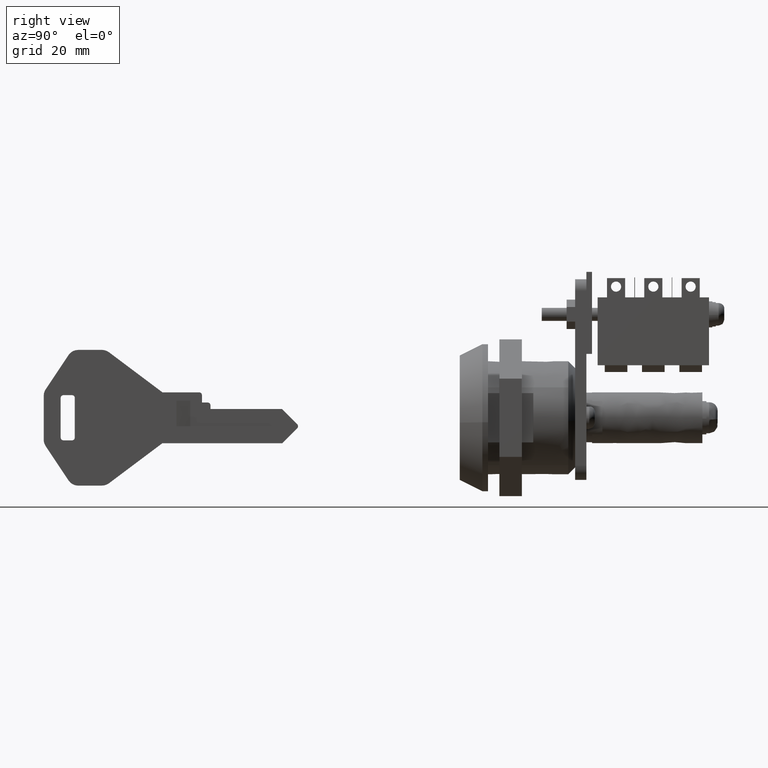
[diagram: clean part render]
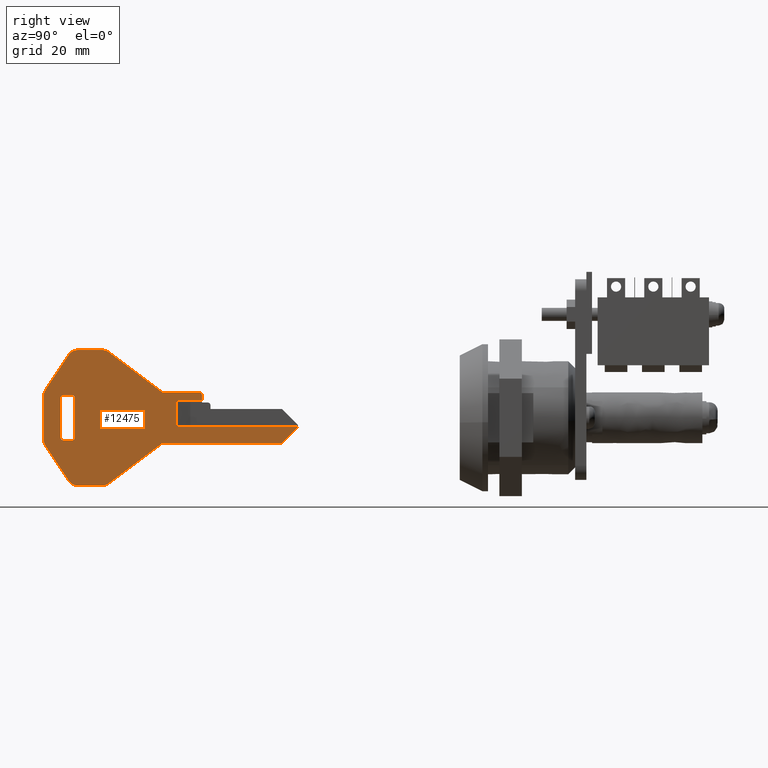
[diagram: same view with one face highlighted and labeled with its STEP entity id]
A machine part, right view. The second image highlights one B-rep face of the part: STEP entity #12475.
In plain terms, the highlighted face is a freeform B-spline surface patch.
Its self-contained STEP definition (entity closure, byte-faithful):
#10869=CARTESIAN_POINT('',(-50.107604999999893,-0.900000000000000,-1.500000000000115));
#10870=VERTEX_POINT('',#10869);
#10891=CARTESIAN_POINT('',(-50.107604999999893,-0.900000000000012,3.0));
#10892=VERTEX_POINT('',#10891);
#10906=CARTESIAN_POINT('',(-50.107604999999893,-0.900000000000000,-1.500000000000115));
#10907=CARTESIAN_POINT('',(-50.107604999999893,-0.900000000000012,3.0));
#10908=QUASI_UNIFORM_CURVE('',1,(#10906,#10907),.UNSPECIFIED.,.F.,.U.);
#10909=EDGE_CURVE('',#10870,#10892,#10908,.T.);
#10980=CARTESIAN_POINT('',(-70.107602999999898,-0.900000000000012,4.0));
#10981=VERTEX_POINT('',#10980);
#10996=CARTESIAN_POINT('',(-68.607603026179802,-0.900000000000000,4.0));
#10997=VERTEX_POINT('',#10996);
#11003=CARTESIAN_POINT('',(-70.107602999999898,-0.900000000000012,4.0));
#11004=CARTESIAN_POINT('',(-68.607603026179802,-0.900000000000000,4.0));
#11005=QUASI_UNIFORM_CURVE('',1,(#11003,#11004),.UNSPECIFIED.,.F.,.U.);
#11006=EDGE_CURVE('',#10981,#10997,#11005,.T.);
#11043=CARTESIAN_POINT('',(-68.107602999999898,-0.900000000000012,3.500000000000000));
#11044=VERTEX_POINT('',#11043);
#11050=CARTESIAN_POINT('',(-68.607603026179802,-0.900000000000012,3.999999999999999));
#11051=CARTESIAN_POINT('',(-68.400496237325342,-0.900000000000012,4.000000010844071));
#11052=CARTESIAN_POINT('',(-68.254049618662620,-0.900000000000012,3.853553399849268));
#11053=CARTESIAN_POINT('',(-68.107602999999898,-0.900000000000012,3.707106788854465));
#11054=CARTESIAN_POINT('',(-68.107602999999898,-0.900000000000012,3.500000000000000));
#11062=(BOUNDED_CURVE()B_SPLINE_CURVE(2,(#11050,#11051,#11052,#11053,#11054),.UNSPECIFIED.,.F.,.U.)B_SPLINE_CURVE_WITH_KNOTS((3,2,3),(0.0,0.500000000000000,1.0),.UNSPECIFIED.)CURVE()GEOMETRIC_REPRESENTATION_ITEM()RATIONAL_B_SPLINE_CURVE((1.0,0.923879527501979,1.0,0.923879527501979,1.0))REPRESENTATION_ITEM(''));
#11063=EDGE_CURVE('',#10997,#11044,#11062,.T.);
#11081=CARTESIAN_POINT('',(-68.107602999999898,-0.900000000000012,-3.500000000000000));
#11082=VERTEX_POINT('',#11081);
#11088=CARTESIAN_POINT('',(-68.107602999999898,-0.900000000000012,3.500000000000000));
#11089=CARTESIAN_POINT('',(-68.107602999999898,-0.900000000000012,-3.500000000000000));
#11090=QUASI_UNIFORM_CURVE('',1,(#11088,#11089),.UNSPECIFIED.,.F.,.U.);
#11091=EDGE_CURVE('',#11044,#11082,#11090,.T.);
#11126=CARTESIAN_POINT('',(-68.607602999999898,-0.900000000000012,-4.000000000000116));
#11127=VERTEX_POINT('',#11126);
#11133=CARTESIAN_POINT('',(-68.107602999999898,-0.900000000000012,-3.500000000000000));
#11134=CARTESIAN_POINT('',(-68.107602999999898,-0.900000000000012,-4.000000000000000));
#11135=CARTESIAN_POINT('',(-68.607602999999898,-0.900000000000012,-4.0));
#11143=(BOUNDED_CURVE()B_SPLINE_CURVE(2,(#11133,#11134,#11135),.UNSPECIFIED.,.F.,.U.)CURVE()GEOMETRIC_REPRESENTATION_ITEM()QUASI_UNIFORM_CURVE()RATIONAL_B_SPLINE_CURVE((1.0,0.707106781186548,1.0))REPRESENTATION_ITEM(''));
#11144=EDGE_CURVE('',#11082,#11127,#11143,.T.);
#11162=CARTESIAN_POINT('',(-70.107602991273296,-0.900000000000012,-4.0));
#11163=VERTEX_POINT('',#11162);
#11169=CARTESIAN_POINT('',(-68.607602999999898,-0.900000000000012,-4.000000000000116));
#11170=CARTESIAN_POINT('',(-70.107602991273296,-0.900000000000012,-4.0));
#11171=QUASI_UNIFORM_CURVE('',1,(#11169,#11170),.UNSPECIFIED.,.F.,.U.);
#11172=EDGE_CURVE('',#11127,#11163,#11171,.T.);
#11209=CARTESIAN_POINT('',(-70.607602999999898,-0.900000000000012,-3.500000000000000));
#11210=VERTEX_POINT('',#11209);
#11216=CARTESIAN_POINT('',(-70.107602991273296,-0.900000000000012,-4.0));
#11217=CARTESIAN_POINT('',(-70.314709775015800,-0.900000000000012,-4.000000003614677));
#11218=CARTESIAN_POINT('',(-70.461156387507842,-0.900000000000012,-3.853553393678594));
#11219=CARTESIAN_POINT('',(-70.607602999999898,-0.900000000000012,-3.707106783742511));
#11220=CARTESIAN_POINT('',(-70.607602999999898,-0.900000000000012,-3.500000000000000));
#11228=(BOUNDED_CURVE()B_SPLINE_CURVE(2,(#11216,#11217,#11218,#11219,#11220),.UNSPECIFIED.,.F.,.U.)B_SPLINE_CURVE_WITH_KNOTS((3,2,3),(0.0,0.500000000000000,1.0),.UNSPECIFIED.)CURVE()GEOMETRIC_REPRESENTATION_ITEM()RATIONAL_B_SPLINE_CURVE((1.0,0.923879530841524,1.0,0.923879530841524,1.0))REPRESENTATION_ITEM(''));
#11229=EDGE_CURVE('',#11163,#11210,#11228,.T.);
#11247=CARTESIAN_POINT('',(-70.607602999999898,-0.900000000000012,3.500000000000000));
#11248=VERTEX_POINT('',#11247);
#11254=CARTESIAN_POINT('',(-70.607602999999898,-0.900000000000012,-3.500000000000000));
#11255=CARTESIAN_POINT('',(-70.607602999999898,-0.900000000000012,3.500000000000000));
#11256=QUASI_UNIFORM_CURVE('',1,(#11254,#11255),.UNSPECIFIED.,.F.,.U.);
#11257=EDGE_CURVE('',#11210,#11248,#11256,.T.);
#11291=CARTESIAN_POINT('',(-70.607602999999898,-0.900000000000012,3.500000000000000));
#11292=CARTESIAN_POINT('',(-70.607602999999898,-0.900000000000012,4.000000000000000));
#11293=CARTESIAN_POINT('',(-70.107602999999898,-0.900000000000012,4.0));
#11301=(BOUNDED_CURVE()B_SPLINE_CURVE(2,(#11291,#11292,#11293),.UNSPECIFIED.,.F.,.U.)CURVE()GEOMETRIC_REPRESENTATION_ITEM()QUASI_UNIFORM_CURVE()RATIONAL_B_SPLINE_CURVE((1.0,0.707106781186548,1.0))REPRESENTATION_ITEM(''));
#11302=EDGE_CURVE('',#11248,#10981,#11301,.T.);
#11530=CARTESIAN_POINT('',(-28.607605000000000,-0.900000000000012,-1.500000000000115));
#11531=VERTEX_POINT('',#11530);
#11532=CARTESIAN_POINT('',(-28.607605000000000,-0.900000000000012,-1.500000000000115));
#11533=CARTESIAN_POINT('',(-50.107604999999893,-0.900000000000000,-1.500000000000115));
#11534=QUASI_UNIFORM_CURVE('',1,(#11532,#11533),.UNSPECIFIED.,.F.,.U.);
#11535=EDGE_CURVE('',#11531,#10870,#11534,.T.);
#11550=CARTESIAN_POINT('',(-45.607604999999900,-0.900000000000012,3.0));
#11551=VERTEX_POINT('',#11550);
#11552=CARTESIAN_POINT('',(-50.107604999999893,-0.900000000000012,3.0));
#11553=CARTESIAN_POINT('',(-45.607604999999900,-0.900000000000012,3.0));
#11554=QUASI_UNIFORM_CURVE('',1,(#11552,#11553),.UNSPECIFIED.,.F.,.U.);
#11555=EDGE_CURVE('',#10892,#11551,#11554,.T.);
#11581=CARTESIAN_POINT('',(-67.537236999999905,-0.900000000000012,12.0));
#11582=VERTEX_POINT('',#11581);
#11588=CARTESIAN_POINT('',(-63.274269104719700,-0.900000000000012,12.0));
#11589=VERTEX_POINT('',#11588);
#11590=CARTESIAN_POINT('',(-63.274269104719700,-0.900000000000012,12.0));
#11591=CARTESIAN_POINT('',(-67.537236999999905,-0.900000000000012,12.0));
#11592=QUASI_UNIFORM_CURVE('',1,(#11590,#11591),.UNSPECIFIED.,.F.,.U.);
#11593=EDGE_CURVE('',#11589,#11582,#11592,.T.);
#11633=CARTESIAN_POINT('',(-62.074271999999887,-0.900000000000012,11.600006000000000));
#11634=VERTEX_POINT('',#11633);
#11635=CARTESIAN_POINT('',(-62.074271999999887,-0.900000000000012,11.600006000000000));
#11636=CARTESIAN_POINT('',(-62.607604813202990,-0.900000000000012,12.000001234912732));
#11637=CARTESIAN_POINT('',(-63.274269104719700,-0.900000000000012,12.0));
#11645=(BOUNDED_CURVE()B_SPLINE_CURVE(2,(#11635,#11636,#11637),.UNSPECIFIED.,.F.,.U.)CURVE()GEOMETRIC_REPRESENTATION_ITEM()QUASI_UNIFORM_CURVE()RATIONAL_B_SPLINE_CURVE((1.0,0.948683764111594,1.0))REPRESENTATION_ITEM(''));
#11646=EDGE_CURVE('',#11634,#11589,#11645,.T.);
#11669=CARTESIAN_POINT('',(-52.607604999999900,-0.900000000000012,4.499999999999885));
#11670=VERTEX_POINT('',#11669);
#11671=CARTESIAN_POINT('',(-52.607604999999900,-0.900000000000012,4.499999999999885));
#11672=CARTESIAN_POINT('',(-62.074271999999887,-0.900000000000012,11.600006000000000));
#11673=QUASI_UNIFORM_CURVE('',1,(#11671,#11672),.UNSPECIFIED.,.F.,.U.);
#11674=EDGE_CURVE('',#11670,#11634,#11673,.T.);
#11697=CARTESIAN_POINT('',(-46.107605026179897,-0.900000000000012,4.500000000000000));
#11698=VERTEX_POINT('',#11697);
#11699=CARTESIAN_POINT('',(-46.107605026179897,-0.900000000000012,4.500000000000000));
#11700=CARTESIAN_POINT('',(-52.607604999999900,-0.900000000000012,4.499999999999885));
#11701=QUASI_UNIFORM_CURVE('',1,(#11699,#11700),.UNSPECIFIED.,.F.,.U.);
#11702=EDGE_CURVE('',#11698,#11670,#11701,.T.);
#11744=CARTESIAN_POINT('',(-45.607604999999900,-0.900000000000012,4.0));
#11745=VERTEX_POINT('',#11744);
#11746=CARTESIAN_POINT('',(-45.607604999999900,-0.900000000000012,4.0));
#11747=CARTESIAN_POINT('',(-45.607604999999900,-0.900000000000012,4.207106788854493));
#11748=CARTESIAN_POINT('',(-45.754051618662650,-0.900000000000012,4.353553399849303));
#11749=CARTESIAN_POINT('',(-45.900498237325408,-0.900000000000012,4.500000010844113));
#11750=CARTESIAN_POINT('',(-46.107605026179897,-0.900000000000012,4.500000000000000));
#11758=(BOUNDED_CURVE()B_SPLINE_CURVE(2,(#11746,#11747,#11748,#11749,#11750),.UNSPECIFIED.,.F.,.U.)B_SPLINE_CURVE_WITH_KNOTS((3,2,3),(0.0,0.500000000000000,1.0),.UNSPECIFIED.)CURVE()GEOMETRIC_REPRESENTATION_ITEM()RATIONAL_B_SPLINE_CURVE((1.0,0.923879527501960,1.0,0.923879527501960,1.0))REPRESENTATION_ITEM(''));
#11759=EDGE_CURVE('',#11745,#11698,#11758,.T.);
#11782=CARTESIAN_POINT('',(-45.607604999999900,-0.900000000000012,3.0));
#11783=CARTESIAN_POINT('',(-45.607604999999900,-0.900000000000012,4.0));
#11784=QUASI_UNIFORM_CURVE('',1,(#11782,#11783),.UNSPECIFIED.,.F.,.U.);
#11785=EDGE_CURVE('',#11551,#11745,#11784,.T.);
#11835=CARTESIAN_POINT('',(-28.754050999999901,-0.900000000000012,-1.853562000000210));
#11836=VERTEX_POINT('',#11835);
#11837=CARTESIAN_POINT('',(-28.754050999999901,-0.900000000000012,-1.853562000000210));
#11838=CARTESIAN_POINT('',(-28.607600299844169,-0.900000000000012,-1.707114488704189));
#11839=CARTESIAN_POINT('',(-28.607605000000000,-0.900000000000012,-1.500000000000115));
#11847=(BOUNDED_CURVE()B_SPLINE_CURVE(2,(#11837,#11838,#11839),.UNSPECIFIED.,.F.,.U.)CURVE()GEOMETRIC_REPRESENTATION_ITEM()QUASI_UNIFORM_CURVE()RATIONAL_B_SPLINE_CURVE((1.0,0.923872941381308,1.0))REPRESENTATION_ITEM(''));
#11848=EDGE_CURVE('',#11836,#11531,#11847,.T.);
#11871=CARTESIAN_POINT('',(-31.400496999999898,-0.900000000000012,-4.500000000000000));
#11872=VERTEX_POINT('',#11871);
#11873=CARTESIAN_POINT('',(-31.400496999999898,-0.900000000000012,-4.500000000000000));
#11874=CARTESIAN_POINT('',(-28.754050999999901,-0.900000000000012,-1.853562000000210));
#11875=QUASI_UNIFORM_CURVE('',1,(#11873,#11874),.UNSPECIFIED.,.F.,.U.);
#11876=EDGE_CURVE('',#11872,#11836,#11875,.T.);
#11899=CARTESIAN_POINT('',(-52.607600999999903,-0.900000000000012,-4.500000000000000));
#11900=VERTEX_POINT('',#11899);
#11901=CARTESIAN_POINT('',(-52.607600999999903,-0.900000000000012,-4.500000000000000));
#11902=CARTESIAN_POINT('',(-31.400496999999898,-0.900000000000012,-4.500000000000000));
#11903=QUASI_UNIFORM_CURVE('',1,(#11901,#11902),.UNSPECIFIED.,.F.,.U.);
#11904=EDGE_CURVE('',#11900,#11872,#11903,.T.);
#11927=CARTESIAN_POINT('',(-62.070993170872597,-0.900000000000012,-11.597537880314020));
#11928=VERTEX_POINT('',#11927);
#11929=CARTESIAN_POINT('',(-62.070993170872597,-0.900000000000012,-11.597537880314020));
#11930=CARTESIAN_POINT('',(-52.607600999999903,-0.900000000000012,-4.500000000000000));
#11931=QUASI_UNIFORM_CURVE('',1,(#11929,#11930),.UNSPECIFIED.,.F.,.U.);
#11932=EDGE_CURVE('',#11928,#11900,#11931,.T.);
#11972=CARTESIAN_POINT('',(-63.274268999999897,-0.900000000000012,-12.0));
#11973=VERTEX_POINT('',#11972);
#11974=CARTESIAN_POINT('',(-63.274268999999897,-0.900000000000012,-12.0));
#11975=CARTESIAN_POINT('',(-62.605324922600914,-0.900000000000012,-12.000000000000005));
#11976=CARTESIAN_POINT('',(-62.070993170872633,-0.900000000000012,-11.597537880313981));
#11984=(BOUNDED_CURVE()B_SPLINE_CURVE(2,(#11974,#11975,#11976),.UNSPECIFIED.,.F.,.U.)CURVE()GEOMETRIC_REPRESENTATION_ITEM()QUASI_UNIFORM_CURVE()RATIONAL_B_SPLINE_CURVE((1.0,0.948358829809949,1.0))REPRESENTATION_ITEM(''));
#11985=EDGE_CURVE('',#11973,#11928,#11984,.T.);
#12008=CARTESIAN_POINT('',(-67.537237104719694,-0.900000000000012,-12.0));
#12009=VERTEX_POINT('',#12008);
#12010=CARTESIAN_POINT('',(-67.537237104719694,-0.900000000000012,-12.0));
#12011=CARTESIAN_POINT('',(-63.274268999999897,-0.900000000000012,-12.0));
#12012=QUASI_UNIFORM_CURVE('',1,(#12010,#12011),.UNSPECIFIED.,.F.,.U.);
#12013=EDGE_CURVE('',#12009,#11973,#12012,.T.);
#12053=CARTESIAN_POINT('',(-69.201337999999907,-0.900000000000012,-11.109406000000099));
#12054=VERTEX_POINT('',#12053);
#12055=CARTESIAN_POINT('',(-69.201337999999907,-0.900000000000012,-11.109406000000099));
#12056=CARTESIAN_POINT('',(-68.607603136463396,-0.900000000000012,-12.000000901581313));
#12057=CARTESIAN_POINT('',(-67.537237104719694,-0.900000000000012,-12.0));
#12065=(BOUNDED_CURVE()B_SPLINE_CURVE(2,(#12055,#12056,#12057),.UNSPECIFIED.,.F.,.U.)CURVE()GEOMETRIC_REPRESENTATION_ITEM()QUASI_UNIFORM_CURVE()RATIONAL_B_SPLINE_CURVE((1.0,0.881675134599065,1.0))REPRESENTATION_ITEM(''));
#12066=EDGE_CURVE('',#12054,#12009,#12065,.T.);
#12089=CARTESIAN_POINT('',(-73.271703676310693,-0.900000000000012,-5.003855260997839));
#12090=VERTEX_POINT('',#12089);
#12091=CARTESIAN_POINT('',(-73.271703676310693,-0.900000000000012,-5.003855260997839));
#12092=CARTESIAN_POINT('',(-69.201337999999907,-0.900000000000012,-11.109406000000099));
#12093=QUASI_UNIFORM_CURVE('',1,(#12091,#12092),.UNSPECIFIED.,.F.,.U.);
#12094=EDGE_CURVE('',#12090,#12054,#12093,.T.);
#12134=CARTESIAN_POINT('',(-73.607602999999898,-0.900000000000012,-3.894455000000110));
#12135=VERTEX_POINT('',#12134);
#12136=CARTESIAN_POINT('',(-73.607602999999898,-0.900000000000012,-3.894455000000110));
#12137=CARTESIAN_POINT('',(-73.607602999999898,-0.900000000000012,-4.500006189229297));
#12138=CARTESIAN_POINT('',(-73.271703676310722,-0.900000000000012,-5.003855260997854));
#12146=(BOUNDED_CURVE()B_SPLINE_CURVE(2,(#12136,#12137,#12138),.UNSPECIFIED.,.F.,.U.)CURVE()GEOMETRIC_REPRESENTATION_ITEM()QUASI_UNIFORM_CURVE()RATIONAL_B_SPLINE_CURVE((1.0,0.957092037934548,1.0))REPRESENTATION_ITEM(''));
#12147=EDGE_CURVE('',#12135,#12090,#12146,.T.);
#12170=CARTESIAN_POINT('',(-73.607602999999898,-0.900000000000012,3.894454825467070));
#12171=VERTEX_POINT('',#12170);
#12172=CARTESIAN_POINT('',(-73.607602999999898,-0.900000000000012,3.894454825467070));
#12173=CARTESIAN_POINT('',(-73.607602999999898,-0.900000000000012,-3.894455000000110));
#12174=QUASI_UNIFORM_CURVE('',1,(#12172,#12173),.UNSPECIFIED.,.F.,.U.);
#12175=EDGE_CURVE('',#12171,#12135,#12174,.T.);
#12215=CARTESIAN_POINT('',(-73.270456448436306,-0.900000000000012,5.005723828422310));
#12216=VERTEX_POINT('',#12215);
#12217=CARTESIAN_POINT('',(-73.270456448436320,-0.900000000000012,5.005723828422319));
#12218=CARTESIAN_POINT('',(-73.607603052951234,-0.900000000000012,4.501232584172988));
#12219=CARTESIAN_POINT('',(-73.607602999999884,-0.900000000000012,3.894454825467069));
#12227=(BOUNDED_CURVE()B_SPLINE_CURVE(2,(#12217,#12218,#12219),.UNSPECIFIED.,.F.,.U.)CURVE()GEOMETRIC_REPRESENTATION_ITEM()QUASI_UNIFORM_CURVE()RATIONAL_B_SPLINE_CURVE((1.0,0.956929118516611,1.0))REPRESENTATION_ITEM(''));
#12228=EDGE_CURVE('',#12216,#12171,#12227,.T.);
#12251=CARTESIAN_POINT('',(-69.201337999999907,-0.900000000000012,11.109404999999899));
#12252=VERTEX_POINT('',#12251);
#12253=CARTESIAN_POINT('',(-69.201337999999907,-0.900000000000012,11.109404999999899));
#12254=CARTESIAN_POINT('',(-73.270456448436306,-0.900000000000012,5.005723828422310));
#12255=QUASI_UNIFORM_CURVE('',1,(#12253,#12254),.UNSPECIFIED.,.F.,.U.);
#12256=EDGE_CURVE('',#12252,#12216,#12255,.T.);
#12294=CARTESIAN_POINT('',(-67.537236999999905,-0.900000000000012,12.0));
#12295=CARTESIAN_POINT('',(-68.607603403512840,-0.900000000000012,12.000000803777835));
#12296=CARTESIAN_POINT('',(-69.201337999999907,-0.900000000000012,11.109404999999899));
#12304=(BOUNDED_CURVE()B_SPLINE_CURVE(2,(#12294,#12295,#12296),.UNSPECIFIED.,.F.,.U.)CURVE()GEOMETRIC_REPRESENTATION_ITEM()QUASI_UNIFORM_CURVE()RATIONAL_B_SPLINE_CURVE((1.0,0.881675024093946,1.0))REPRESENTATION_ITEM(''));
#12305=EDGE_CURVE('',#11582,#12252,#12304,.T.);
#12436=CARTESIAN_POINT('',(-75.855354925020109,-0.900000000000000,13.198799953483340));
#12437=CARTESIAN_POINT('',(-26.359853879642479,-0.900000000000000,13.198799953483340));
#12438=CARTESIAN_POINT('',(-75.855354925020109,-0.900000000000000,-13.198800597213509));
#12439=CARTESIAN_POINT('',(-26.359853879642479,-0.900000000000000,-13.198800597213509));
#12440=B_SPLINE_SURFACE_WITH_KNOTS('',1,1,((#12436,#12438),(#12437,#12439)),.UNSPECIFIED.,.F.,.F.,.U.,(2,2),(2,2),(0.0,49.495501045377630),(0.0,26.397600550696851),.UNSPECIFIED.);
#12441=ORIENTED_EDGE('',*,*,#11555,.T.);
#12442=ORIENTED_EDGE('',*,*,#11785,.T.);
#12443=ORIENTED_EDGE('',*,*,#11759,.T.);
#12444=ORIENTED_EDGE('',*,*,#11702,.T.);
#12445=ORIENTED_EDGE('',*,*,#11674,.T.);
#12446=ORIENTED_EDGE('',*,*,#11646,.T.);
#12447=ORIENTED_EDGE('',*,*,#11593,.T.);
#12448=ORIENTED_EDGE('',*,*,#12305,.T.);
#12449=ORIENTED_EDGE('',*,*,#12256,.T.);
#12450=ORIENTED_EDGE('',*,*,#12228,.T.);
#12451=ORIENTED_EDGE('',*,*,#12175,.T.);
#12452=ORIENTED_EDGE('',*,*,#12147,.T.);
#12453=ORIENTED_EDGE('',*,*,#12094,.T.);
#12454=ORIENTED_EDGE('',*,*,#12066,.T.);
#12455=ORIENTED_EDGE('',*,*,#12013,.T.);
#12456=ORIENTED_EDGE('',*,*,#11985,.T.);
#12457=ORIENTED_EDGE('',*,*,#11932,.T.);
#12458=ORIENTED_EDGE('',*,*,#11904,.T.);
#12459=ORIENTED_EDGE('',*,*,#11876,.T.);
#12460=ORIENTED_EDGE('',*,*,#11848,.T.);
#12461=ORIENTED_EDGE('',*,*,#11535,.T.);
#12462=ORIENTED_EDGE('',*,*,#10909,.T.);
#12463=EDGE_LOOP('',(#12441,#12442,#12443,#12444,#12445,#12446,#12447,#12448,#12449,#12450,#12451,#12452,#12453,#12454,#12455,#12456,#12457,#12458,#12459,#12460,#12461,#12462));
#12464=FACE_OUTER_BOUND('',#12463,.T.);
#12465=ORIENTED_EDGE('',*,*,#11257,.T.);
#12466=ORIENTED_EDGE('',*,*,#11302,.T.);
#12467=ORIENTED_EDGE('',*,*,#11006,.T.);
#12468=ORIENTED_EDGE('',*,*,#11063,.T.);
#12469=ORIENTED_EDGE('',*,*,#11091,.T.);
#12470=ORIENTED_EDGE('',*,*,#11144,.T.);
#12471=ORIENTED_EDGE('',*,*,#11172,.T.);
#12472=ORIENTED_EDGE('',*,*,#11229,.T.);
#12473=EDGE_LOOP('',(#12465,#12466,#12467,#12468,#12469,#12470,#12471,#12472));
#12474=FACE_BOUND('',#12473,.T.);
#12475=ADVANCED_FACE('',(#12464,#12474),#12440,.F.);